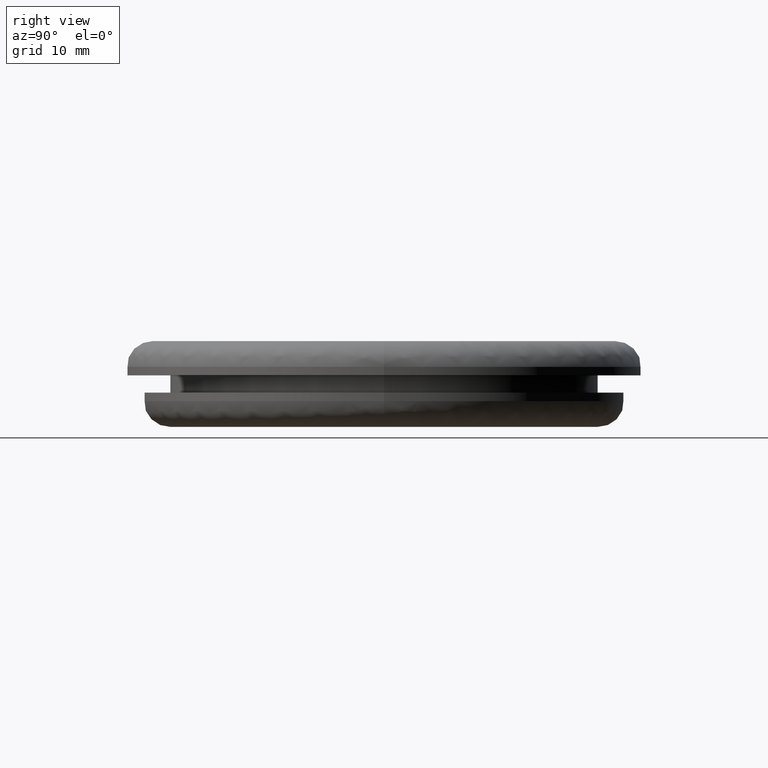
[diagram: clean part render]
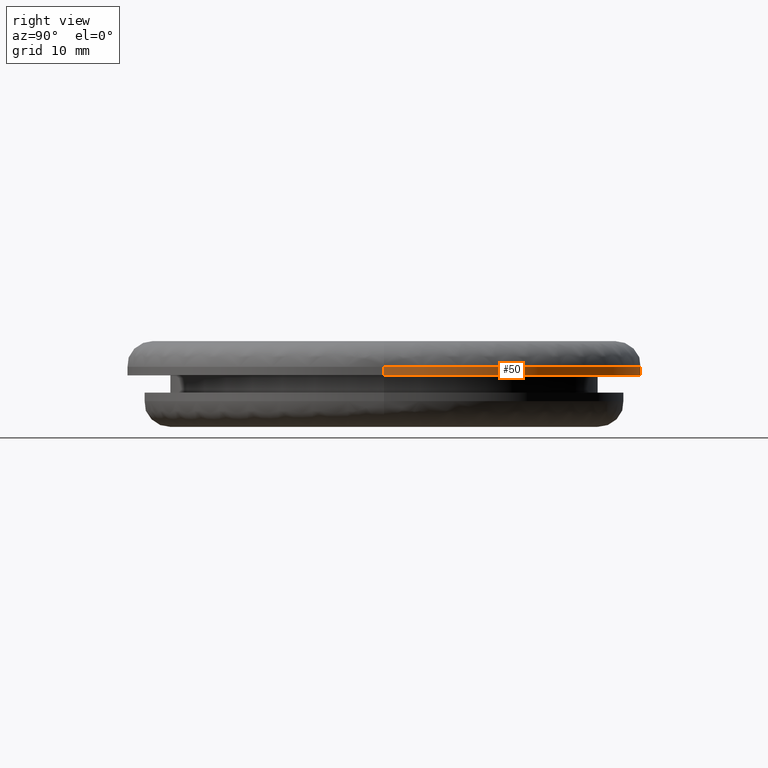
[diagram: same view with one face highlighted and labeled with its STEP entity id]
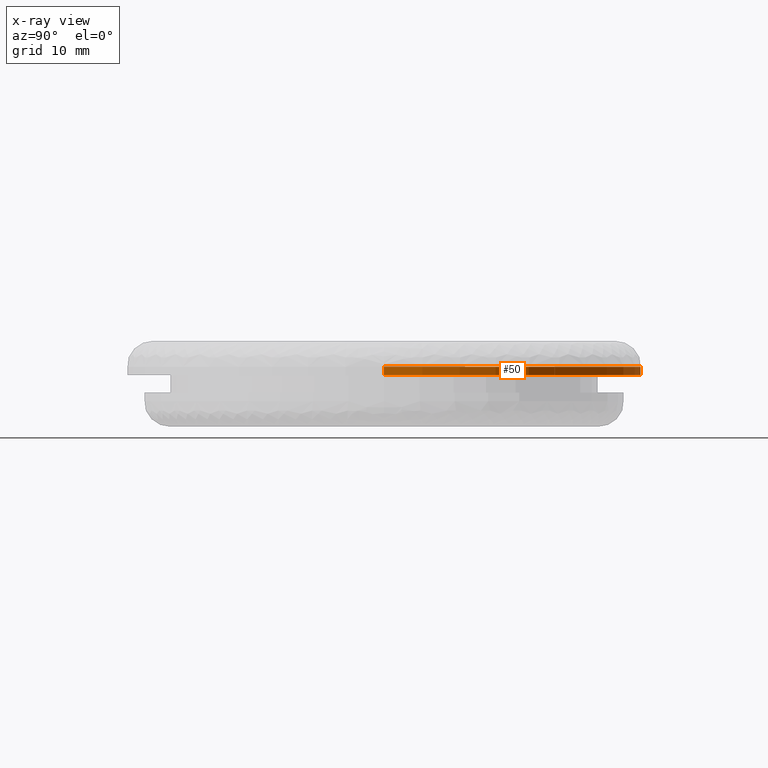
[diagram: x-ray of the same camera — body ghosted, the highlighted face saturated]
A machine part, right view. The second image highlights one B-rep face of the part: STEP entity #50.
The next image is the same camera in x-ray: the body ghosted, the highlighted face saturated — about 0% of this face is hidden behind the body in this view.
In plain terms, the highlighted cylindrical surface (partial cylindrical patch) has radius 30 mm, axis along (0, -0, 1).
Its self-contained STEP definition (entity closure, byte-faithful):
#50=ADVANCED_FACE('',(#165),#164,.T.);
#164=CYLINDRICAL_SURFACE('',#363,3.00000000000E+01);
#165=FACE_OUTER_BOUND('',#364,.T.);
#360=CARTESIAN_POINT('',(-1.19371179608E-12,0.00000000000E+00,0.00000000000E+00));
#361=DIRECTION('',(0.00000000000E+00,-0.00000000000E+00,1.00000000000E+00));
#362=DIRECTION('',(1.00000000000E+00,0.00000000000E+00,0.00000000000E+00));
#363=AXIS2_PLACEMENT_3D('',#360,#361,#362);
#364=EDGE_LOOP('',(#488,#489,#490,#491));
#488=ORIENTED_EDGE('',*,*,#553,.T.);
#489=ORIENTED_EDGE('',*,*,#554,.F.);
#490=ORIENTED_EDGE('',*,*,#536,.F.);
#491=ORIENTED_EDGE('',*,*,#555,.T.);
#536=EDGE_CURVE('',#622,#623,#624,.T.);
#553=EDGE_CURVE('',#719,#718,#738,.T.);
#554=EDGE_CURVE('',#623,#718,#744,.T.);
#555=EDGE_CURVE('',#622,#719,#750,.T.);
#622=VERTEX_POINT('',#858);
#623=VERTEX_POINT('',#859);
#624=CIRCLE('',#863,3.00000000000E+01);
#718=VERTEX_POINT('',#922);
#719=VERTEX_POINT('',#923);
#738=CIRCLE('',#939,3.00000000000E+01);
#744=(BOUNDED_CURVE() B_SPLINE_CURVE(1,(#940,#941),.UNSPECIFIED.,.F.,.F.) B_SPLINE_CURVE_WITH_KNOTS((2,2),(8.33332935974E-02,9.16666633252E-01),.UNSPECIFIED.) CURVE() GEOMETRIC_REPRESENTATION_ITEM() RATIONAL_B_SPLINE_CURVE((1.00000000000E+00,1.00000000000E+00)) REPRESENTATION_ITEM('') );
#750=(BOUNDED_CURVE() B_SPLINE_CURVE(1,(#942,#943),.UNSPECIFIED.,.F.,.F.) B_SPLINE_CURVE_WITH_KNOTS((2,2),(8.33333333333E-02,9.16666666667E-01),.UNSPECIFIED.) CURVE() GEOMETRIC_REPRESENTATION_ITEM() RATIONAL_B_SPLINE_CURVE((7.50000000000E-01,7.50000000000E-01)) REPRESENTATION_ITEM('') );
#858=CARTESIAN_POINT('',(-3.00000000000E+01,0.00000000000E+00,-4.00000000001E+00));
#859=CARTESIAN_POINT('',(3.00000000000E+01,3.55271367880E-15,-4.00000000001E+00));
#860=CARTESIAN_POINT('',(-1.19371179608E-12,0.00000000000E+00,-4.00000000001E+00));
#861=DIRECTION('',(-0.00000000000E+00,0.00000000000E+00,-1.00000000000E+00));
#862=DIRECTION('',(-1.00000000000E+00,-1.22460635382E-16,0.00000000000E+00));
#863=AXIS2_PLACEMENT_3D('',#860,#861,#862);
#922=CARTESIAN_POINT('',(3.00000000000E+01,3.55271367880E-15,-3.00000000000E+00));
#923=CARTESIAN_POINT('',(-3.00000000000E+01,0.00000000000E+00,-3.00000000000E+00));
#936=CARTESIAN_POINT('',(-1.19371179608E-12,0.00000000000E+00,-3.00000000000E+00));
#937=DIRECTION('',(-0.00000000000E+00,0.00000000000E+00,-1.00000000000E+00));
#938=DIRECTION('',(-1.00000000000E+00,-1.22460635382E-16,0.00000000000E+00));
#939=AXIS2_PLACEMENT_3D('',#936,#937,#938);
#940=CARTESIAN_POINT('',(3.00000000000E+01,0.00000000000E+00,-4.00000004769E+00));
#941=CARTESIAN_POINT('',(3.00000000000E+01,0.00000000000E+00,-3.00000004010E+00));
#942=CARTESIAN_POINT('',(-3.00000000000E+01,0.00000000000E+00,-4.00000000001E+00));
#943=CARTESIAN_POINT('',(-3.00000000000E+01,0.00000000000E+00,-3.00000000000E+00));